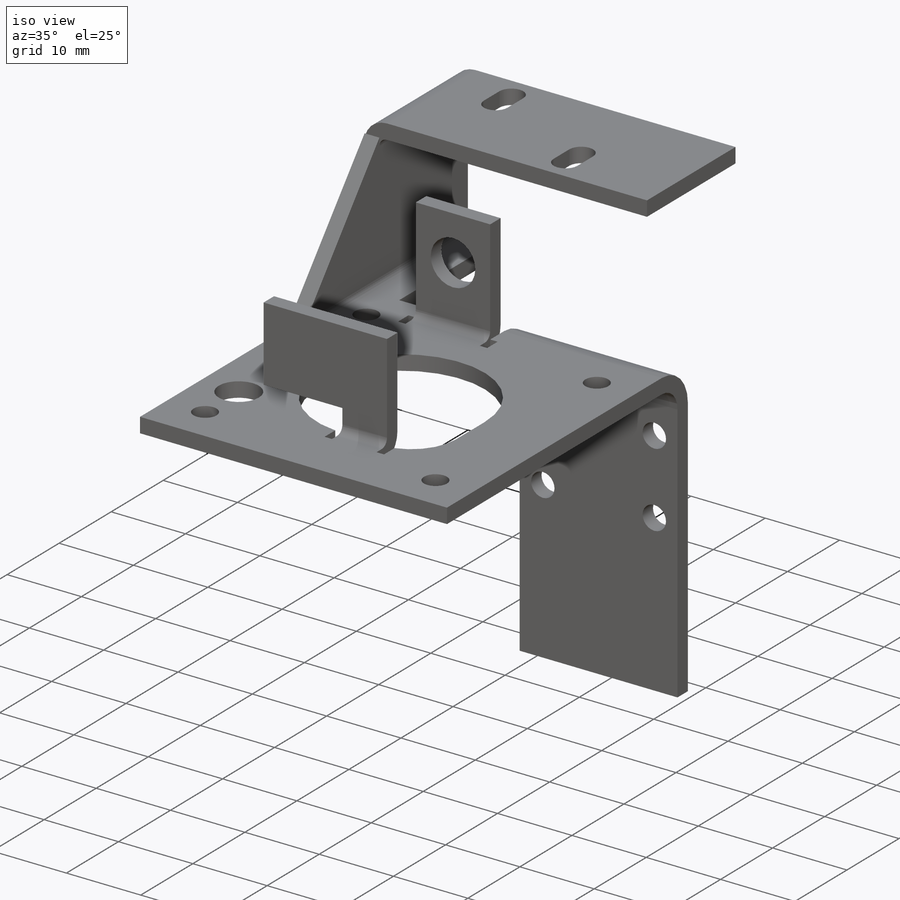
[diagram: iso view]
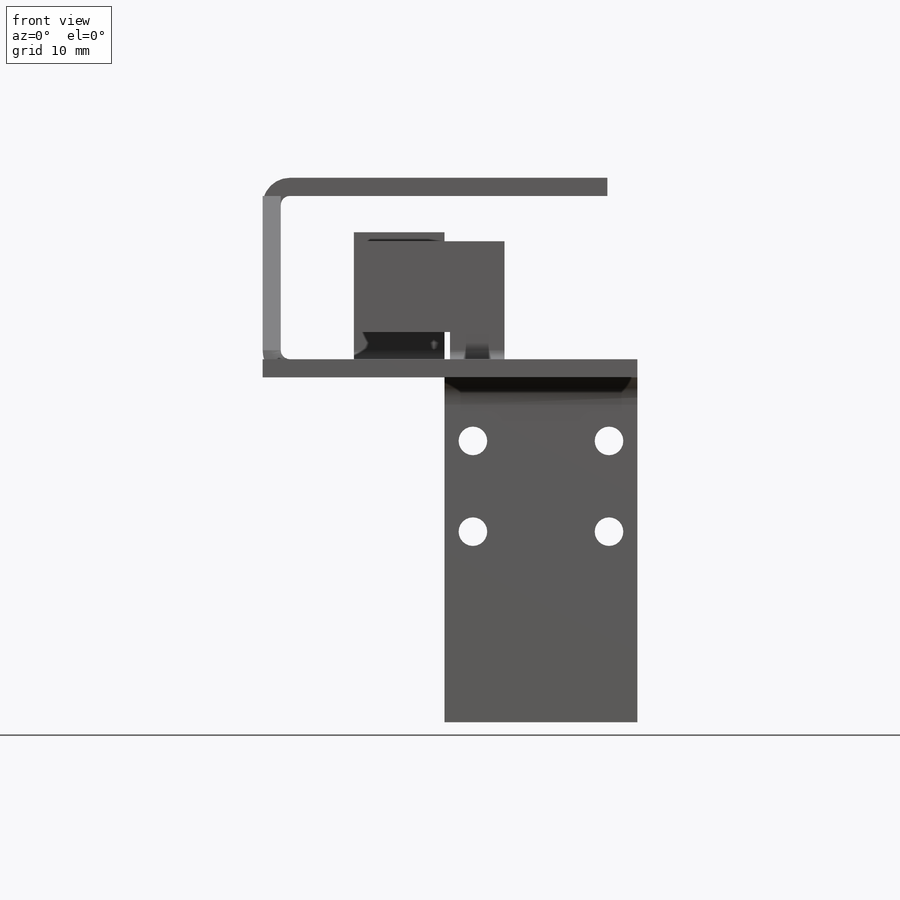
[diagram: front view]
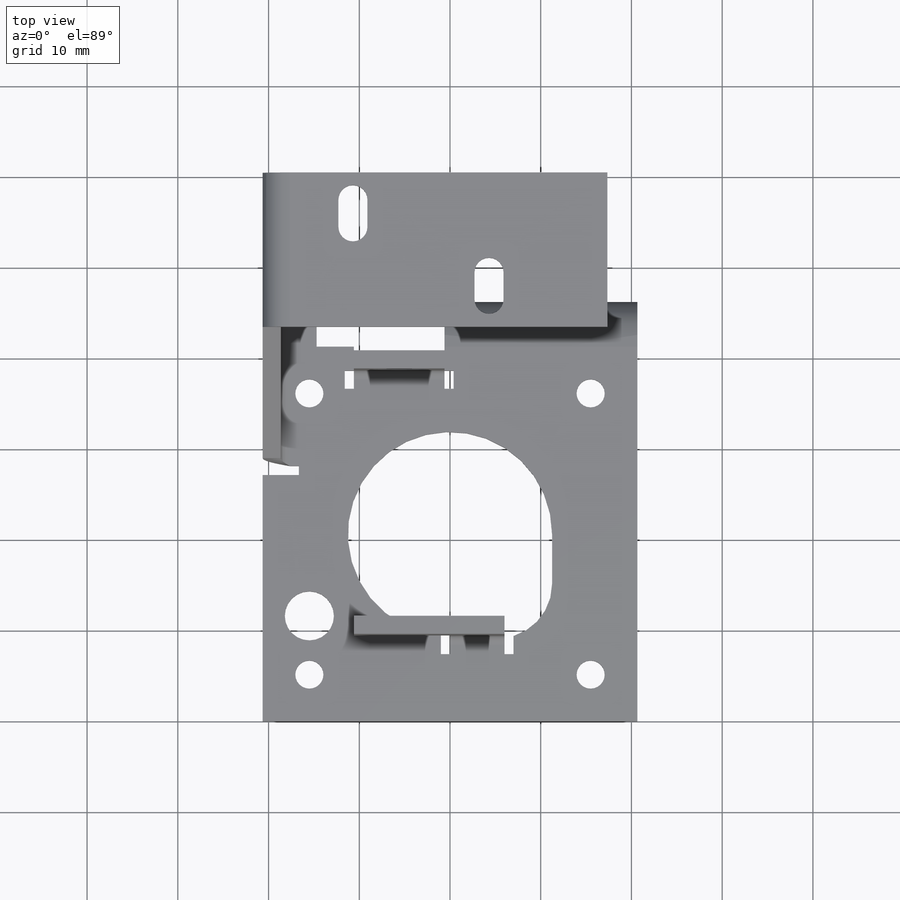
[diagram: top view]
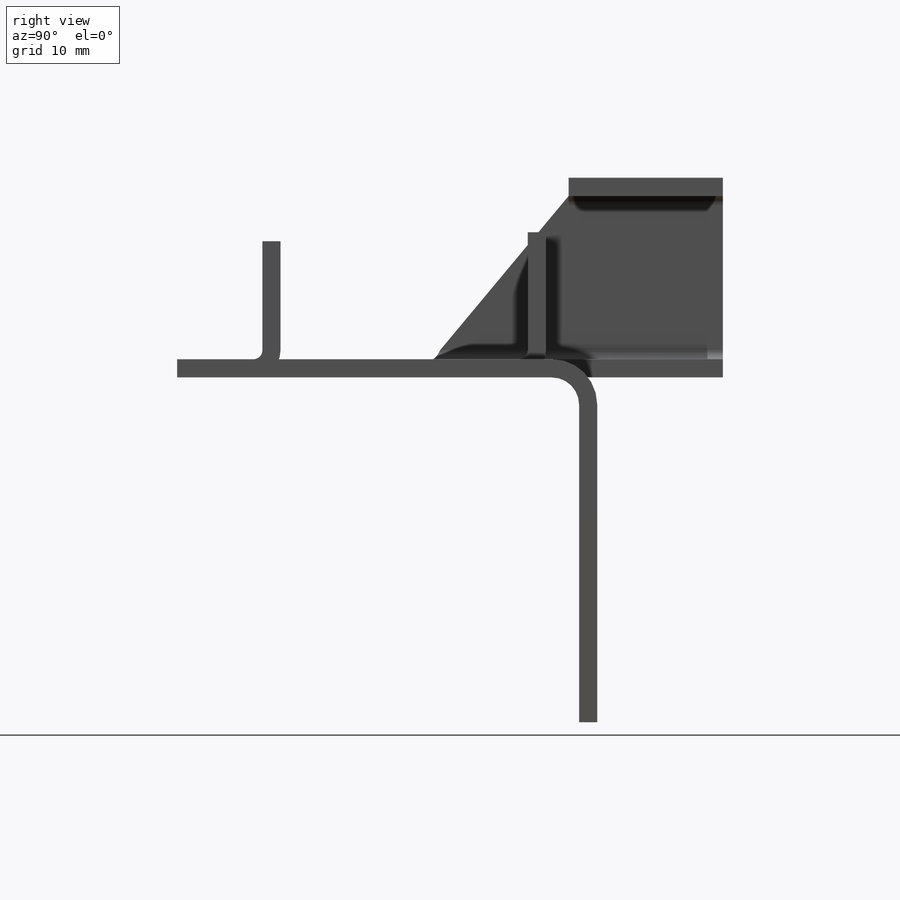
[diagram: right view]
SOLIDWORKS PART (.sldprt)
format: sldprt  version: not decoded by parser v0  size: 830,464 bytes
history: native  units: mm
features: sketch x46, fillet x14, hole x14, cut_extrude x6, sheet_metal_op x2, material x1, extrude x1 + 38 further entries (+13 scaffold rows collapsed; 14 parser-record rows omitted)
feature tree (149):
  scaffold x13  (default folders/planes/origin — collapsed)
  material  "Material <not specified>"
  sketch  "Sketch10"  dims[c1.D3=22.5mm c1.D1=41.8mm c1.D2=41.8mm c2.D1=0.5mm c2.D2=0.5mm c2.D4=0.5mm c2.D5=0.5mm c3.D1=0.5mm c4.D1=10.0mm c4.D2=0.5 c4.D3=0.0mm c4.D6=500.0mm]
  sheet_metal_op  "Base-Flange2"
  sketch  "Sketch21"  dims[D1=5.0mm D2=5.0mm]
  cut_extrude  "Cut-Extrude1"  [1 undecoded]
  sketch  "Sketch24"  dims[c1.D1=1.0mm c1.D4=90.0deg c1.D5=1.0 c1.D8=0.75mm c1.D9=0.75mm c2.D1=1.0mm c2.D2=500.0mm c2.D3=0.0mm c2.D6=10.0mm c2.D7=16.0mm]
  sketch  "Sketch25"  dims[D1=6.0mm]
  cut_extrude  "Cut-Extrude2"  [1 undecoded]
  sketch  "Sketch26"  dims[D1=5.95mm D2=18.85mm D3=18.85mm]
  extrude  "Boss-Extrude2"  Depth=2mm
  sketch  "Sketch35"  dims[c1.D1=8.0mm c1.D2=18.0mm c1.D3=~23.430749mm c2.D3=~50.194429deg c2.D1=1.0mm c2.D4=90.0deg c2.D5=2.0 c2.D8=0.75mm c2.D9=0.75mm c3.D1=1.0mm c3.D2=500.0mm c3.D3=0.0mm c3.D6=10.0mm c3.D7=20.0mm]
  sketch  "Sketch38"  dims[c1.D1=1.0mm c1.D4=90.0deg c1.D5=3.0 c1.D8=0.75mm c1.D9=0.75mm c2.D1=1.0mm c2.D2=500.0mm c2.D3=0.0mm c2.D6=10.0mm c2.D7=38.0mm]
  sketch  "Sketch39"  dims[D1=1.6mm D2=1.6mm D3=3.0mm D4=3.0mm]
  cut_extrude  "Cut-Extrude3"  [1 undecoded]
  sketch  "Sketch40"
  cut_extrude  "Cut-Extrude4"  [1 undecoded]
  sketch  "Sketch43"  dims[c1.D4=4.0mm c1.D5=4.0mm c1.D1=5.0mm c1.D2=5.0mm c1.D3=5.0mm c2.D5=3.0mm c2.D4=6.0mm c2.D1=1.0mm c3.D4=90.0deg c3.D5=4.0 c3.D8=0.75mm c3.D9=0.75mm c3.D1=1.0mm c3.D2=500.0mm c3.D3=0.0mm c3.D6=10.0mm c3.D7=15.0mm]
  fillet  "Fillet1"  Radius=6mm
  sketch  "Sketch46"  dims[c1.D1=3.0mm c1.D4=90.0deg c1.D5=5.0 c1.D8=1.0mm c1.D9=1.0mm c2.D1=3.0mm c2.D2=500.0mm c2.D3=0.0mm c2.D6=10.0mm c2.D7=40.0mm]
  sketch  "Sketch47"  dims[D1=3.15mm D4=6.0mm D5=6.0mm D2=15.0mm D3=10.0mm D6=1.0mm]
  cut_extrude  "Cut-Extrude5"  Depth=10mm
  sketch  "Sketch48"  dims[c1.D1=15.5mm c1.D2=15.5mm c1.D3=~21.92031mm c2.D2=15.5mm c2.D3=15.5mm c2.D4=15.5mm c2.D5=15.5mm c2.D6=15.5mm c2.D7=15.5mm c2.D8=15.5mm]
  hole  "Ø3.1 (3.1) Diameter Hole1"  Diameter=3.1mm Depth=10mm
  sketch  "Sketch50"
  sketch  "Sketch49"  dims[hole-wizard template sketch: 46 standard entries collapsed; hole parameters kept: c15.Hole Dia.=3.1mm c15.Hole Depth=10.0mm c15.D3=~14.816244mm c15.Drill Angle=118.0deg]
  sketch  "Sketch51"  dims[D1=5.41mm]
  cut_extrude  "Cut-Extrude6"  [1 undecoded]
  sketch  "Bend-Lines4"
  sketch  "Bounding-Box4"
  sheet_metal_op  "Sheet-Metal4"
  "Flat-Pattern4"
  sketch  "Bend-Lines5"
  sketch  "Bounding-Box5"
  parser-record x14  (decoder bookkeeping rows leaked as tree rows — omitted from the tree; the rows remain in map.json)
  fillet  "Sheet-Metal7"  Radius=10mm
  hole  "Flat-Pattern4"  [1 undecoded]
  sketch  "Bend-Lines5"
  sketch  "Bounding-Box5"
  fillet  "Sheet-Metal8"  Radius=10mm
  hole  "Flat-Pattern4"  [1 undecoded]
  sketch  "Bend-Lines5"
  sketch  "Bounding-Box5"
  fillet  "Sheet-Metal9"  Radius=10mm
  hole  "Flat-Pattern4"  [1 undecoded]
  sketch  "Bend-Lines5"
  sketch  "Bounding-Box5"
  "Flatten-<EdgeBend3>1"
  fillet  "Sheet-Metal10"  Radius=10mm
  hole  "Flat-Pattern4"  [1 undecoded]
  sketch  "Bend-Lines5"
  sketch  "Bounding-Box5"
  "Flatten-<EdgeBend3>1"
  fillet  "Sheet-Metal12"  Radius=10mm
  hole  "Flat-Pattern4"  [1 undecoded]
  sketch  "Bend-Lines5"
  sketch  "Bounding-Box5"
  "Flatten-<EdgeBend4>1"
  "Flatten-<EdgeBend3>1"
  fillet  "Sheet-Metal13"  Radius=10mm
  hole  "Flat-Pattern4"  [1 undecoded]
  sketch  "Bend-Lines5"
  sketch  "Bounding-Box5"
  "Flatten-<EdgeBend4>1"
  "Flatten-<EdgeBend5>1"
  "Flatten-<EdgeBend3>1"
  fillet  "Sheet-Metal14"  Radius=10mm
  hole  "Flat-Pattern4"  [1 undecoded]
  sketch  "Bend-Lines5"
  sketch  "Bounding-Box5"
  "Flatten-<EdgeBend4>1"
  "Flatten-<EdgeBend5>1"
  "Flatten-<EdgeBend3>1"
  fillet  "Sheet-Metal15"  Radius=10mm
  hole  "Flat-Pattern4"  [1 undecoded]
  sketch  "Bend-Lines5"
  sketch  "Bounding-Box5"
  "Flatten-<EdgeBend4>1"
  "Flatten-<EdgeBend5>1"
  "Flatten-<EdgeBend3>1"
  fillet  "Sheet-Metal16"  Radius=10mm
  hole  "Flat-Pattern4"  [1 undecoded]
  sketch  "Bend-Lines5"
  sketch  "Bounding-Box5"
  "Flatten-<EdgeBend4>1"
  "Flatten-<EdgeBend5>1"
  "Flatten-<EdgeBend6>1"
  "Flatten-<EdgeBend3>1"
  fillet  "Sheet-Metal17"  Radius=10mm
  hole  "Flat-Pattern4"  [1 undecoded]
  sketch  "Bend-Lines5"
  sketch  "Bounding-Box5"
  "Flatten-<EdgeBend4>1"
  "Flatten-<EdgeBend5>1"
  "Flatten-<EdgeBend6>1"
  "Flatten-<EdgeBend7>1"
  "Flatten-<EdgeBend3>1"
  fillet  "Sheet-Metal18"  Radius=10mm
  hole  "Flat-Pattern4"  [1 undecoded]
  sketch  "Bend-Lines5"
  sketch  "Bounding-Box5"
  "Flatten-<EdgeBend4>1"
  "Flatten-<EdgeBend5>1"
  "Flatten-<EdgeBend6>1"
  "Flatten-<EdgeBend7>1"
  "Flatten-<EdgeBend3>1"
  fillet  "Sheet-Metal19"  Radius=10mm
  hole  "Flat-Pattern4"  [1 undecoded]
  sketch  "Bend-Lines5"
  sketch  "Bounding-Box5"
  "Flatten-<EdgeBend4>1"
  "Flatten-<EdgeBend5>1"
  "Flatten-<EdgeBend6>1"
  "Flatten-<EdgeBend7>1"
  "Flatten-<EdgeBend3>1"
  fillet  "Sheet-Metal20"  Radius=10mm
  hole  "Flat-Pattern4"  [1 undecoded]
  sketch  "Bend-Lines5"
  sketch  "Bounding-Box5"
  "Flatten-<EdgeBend4>1"
  "Flatten-<EdgeBend5>1"
  "Flatten-<EdgeBend6>1"
  "Flatten-<EdgeBend7>1"
  "Flatten-<EdgeBend3>1"
decode coverage: 31 of 83 modeling features carry decoded parameters; 38 rows unclassified (native names shown)
note: ~ marks probable driven/reference dimensions
note: 18 parameter values undecoded
summary: no parameter record found for 18 features
note: suppression state not decoded; provenance and decode notes live in map.json
